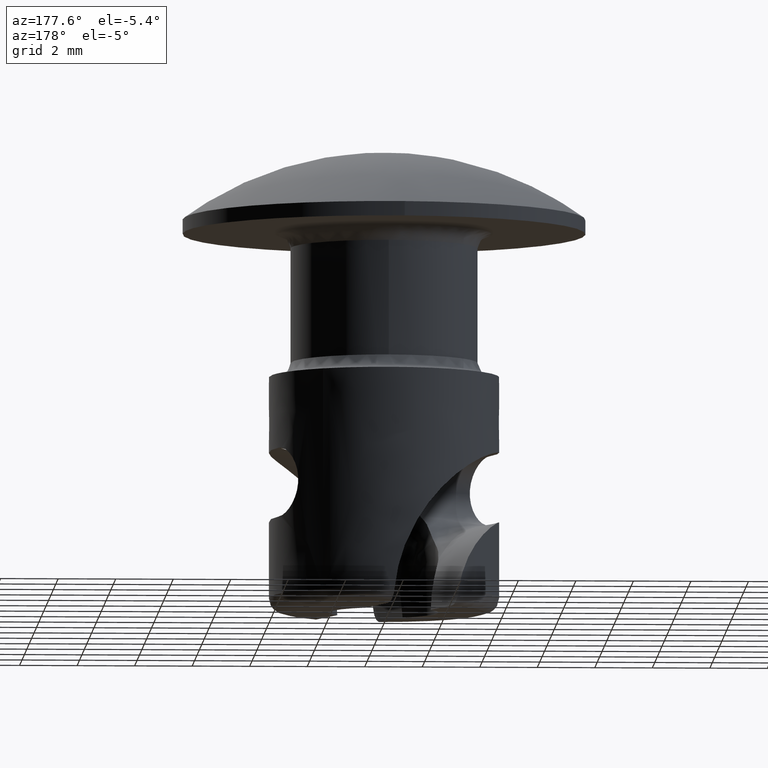
[diagram: clean part render]
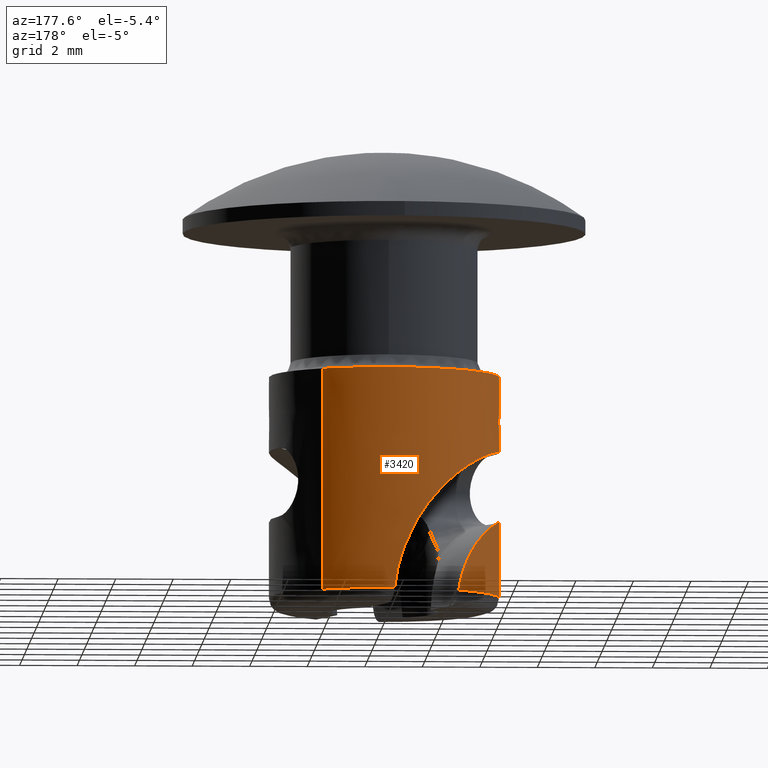
[diagram: same view with one face highlighted and labeled with its STEP entity id]
A machine part, auxiliary view. The second image highlights one B-rep face of the part: STEP entity #3420.
In plain terms, the highlighted face is a freeform B-spline surface patch.
Its self-contained STEP definition (entity closure, byte-faithful):
#893=CARTESIAN_POINT('',(2.259197574240169,3.300912952585230,-4.999992000000231));
#894=VERTEX_POINT('',#893);
#908=CARTESIAN_POINT('',(-4.0,0.0,-4.999992000000230));
#909=VERTEX_POINT('',#908);
#910=CARTESIAN_POINT('',(2.259197574240169,3.300912952585230,-4.999992000000231));
#911=CARTESIAN_POINT('',(1.237761682086624,3.999999999999773,-4.999992000000231));
#912=CARTESIAN_POINT('',(-1.292140E-013,3.999999999999811,-4.999992000000230));
#913=CARTESIAN_POINT('',(-4.000000000000044,3.999999999999935,-4.999992000000230));
#914=CARTESIAN_POINT('',(-4.0,0.0,-4.999992000000230));
#922=(BOUNDED_CURVE()B_SPLINE_CURVE(2,(#910,#911,#912,#913,#914),.UNSPECIFIED.,.F.,.U.)B_SPLINE_CURVE_WITH_KNOTS((3,2,3),(0.153025890299699,0.250000000000000,0.500000000000000),.UNSPECIFIED.)CURVE()GEOMETRIC_REPRESENTATION_ITEM()RATIONAL_B_SPLINE_CURVE((0.860915090852421,0.886387763473240,1.0,0.707106781186548,1.0))REPRESENTATION_ITEM(''));
#923=EDGE_CURVE('',#894,#909,#922,.T.);
#925=CARTESIAN_POINT('',(-2.259197574405651,-3.300912952471971,-4.999992000000231));
#926=VERTEX_POINT('',#925);
#927=CARTESIAN_POINT('',(-4.0,0.0,-4.999992000000230));
#928=CARTESIAN_POINT('',(-3.999999999999916,-2.109479953768916,-4.999992000000231));
#929=CARTESIAN_POINT('',(-2.259197574405651,-3.300912952471971,-4.999992000000231));
#937=(BOUNDED_CURVE()B_SPLINE_CURVE(2,(#927,#928,#929),.UNSPECIFIED.,.F.,.U.)B_SPLINE_CURVE_WITH_KNOTS((3,3),(0.500000000000000,0.653025890292069),.UNSPECIFIED.)CURVE()GEOMETRIC_REPRESENTATION_ITEM()RATIONAL_B_SPLINE_CURVE((1.0,0.820719017722246,0.860915090848412))REPRESENTATION_ITEM(''));
#938=EDGE_CURVE('',#909,#926,#937,.T.);
#1164=CARTESIAN_POINT('',(-3.708735643717875,-1.498425815653404,-7.600000000000000));
#1165=VERTEX_POINT('',#1164);
#1586=CARTESIAN_POINT('',(-3.708735643717195,-1.498425815655100,-10.0));
#1587=VERTEX_POINT('',#1586);
#1786=CARTESIAN_POINT('',(-0.205768854712651,3.994703891207740,-12.699992000000160));
#1787=VERTEX_POINT('',#1786);
#1788=CARTESIAN_POINT('',(-3.708735643717875,-1.498425815653404,-7.600000000000000));
#1789=CARTESIAN_POINT('',(-3.789807041691146,-1.297766977418964,-7.599999999999967));
#1790=CARTESIAN_POINT('',(-3.853596471551973,-1.093309977378175,-7.600772718924984));
#1791=CARTESIAN_POINT('',(-3.948041825137527,-0.677124965687440,-7.604735402965179));
#1792=CARTESIAN_POINT('',(-3.978695676687689,-0.465396398029507,-7.607916854592961));
#1793=CARTESIAN_POINT('',(-3.995557353135945,-0.196047841707798,-7.615213210024270));
#1794=CARTESIAN_POINT('',(-3.997842840035318,-0.141954885063793,-7.616844880518100));
#1795=CARTESIAN_POINT('',(-4.000215215483697,-0.034304414116106,-7.620481453126770));
#1796=CARTESIAN_POINT('',(-4.000311501833706,0.019379054371342,-7.622489527418434));
#1797=CARTESIAN_POINT('',(-3.997382795663326,0.180003952012950,-7.629172316316781));
#1798=CARTESIAN_POINT('',(-3.991144980023504,0.286520663379554,-7.634502335333308));
#1799=CARTESIAN_POINT('',(-3.959810891774866,0.604340193783497,-7.653941599800710));
#1800=CARTESIAN_POINT('',(-3.922165612591279,0.813926030801537,-7.671427053633487));
#1801=CARTESIAN_POINT('',(-3.853840926421872,1.072742411345297,-7.702605536291266));
#1802=CARTESIAN_POINT('',(-3.839063716241127,1.124479326207520,-7.709332878718137));
#1803=CARTESIAN_POINT('',(-3.807606104284335,1.226784303389935,-7.723726561811621));
#1804=CARTESIAN_POINT('',(-3.757569494926593,1.378546253538888,-7.746723973655144));
#1805=CARTESIAN_POINT('',(-3.699254502020070,1.525269825644304,-7.774274513035329));
#1806=CARTESIAN_POINT('',(-3.572152022832992,1.812031338778992,-7.836415390966361));
#1807=CARTESIAN_POINT('',(-3.473487541862998,1.994320039496119,-7.887177834026945));
#1808=CARTESIAN_POINT('',(-3.333971508136851,2.210720638308926,-7.966138198702014));
#1809=CARTESIAN_POINT('',(-3.305180656646301,2.253531803785282,-7.982754566265484));
#1810=CARTESIAN_POINT('',(-3.246378912532125,2.337444912721444,-8.017432844738268));
#1811=CARTESIAN_POINT('',(-3.156528372275530,2.460519944637448,-8.071505534014388));
#1812=CARTESIAN_POINT('',(-3.062121861641995,2.575450326921853,-8.131925215521200));
#1813=CARTESIAN_POINT('',(-2.868151904439571,2.794967509830934,-8.261735731642588));
#1814=CARTESIAN_POINT('',(-2.731974575040376,2.927544594711210,-8.360217103798947));
#1815=CARTESIAN_POINT('',(-2.555858173822876,3.077292096526748,-8.500168364770465));
#1816=CARTESIAN_POINT('',(-2.520374591309018,3.106405435249388,-8.528978069221800));
#1817=CARTESIAN_POINT('',(-2.449539266845513,3.162562282208051,-8.587774580366899));
#1818=CARTESIAN_POINT('',(-2.343244714092557,3.243897190554972,-8.677923318479957));
#1819=CARTESIAN_POINT('',(-2.237116414107578,3.316976403250024,-8.773933916638111));
#1820=CARTESIAN_POINT('',(-2.096234506022459,3.407759264641178,-8.907189074940703));
#1821=CARTESIAN_POINT('',(-2.026104033602165,3.449821630201876,-8.976437065082797));
#1822=CARTESIAN_POINT('',(-1.921710066072550,3.508364594900644,-9.084288762194099));
#1823=CARTESIAN_POINT('',(-1.887045565961859,3.527119872789734,-9.120902893757121));
#1824=CARTESIAN_POINT('',(-1.818038765337956,3.563179845695840,-9.195470008098951));
#1825=CARTESIAN_POINT('',(-1.783632491396543,3.580514889640178,-9.233496409936555));
#1826=CARTESIAN_POINT('',(-1.613498800480899,3.663267591871199,-9.425921725053115));
#1827=CARTESIAN_POINT('',(-1.483451415774570,3.717058042193894,-9.587114124151178));
#1828=CARTESIAN_POINT('',(-1.237156235664457,3.806125725794989,-9.923631486977360));
#1829=CARTESIAN_POINT('',(-1.120898620844221,3.841371365013050,-10.098957333073990));
#1830=CARTESIAN_POINT('',(-0.958346260560988,3.883903882101996,-10.372711952529770));
#1831=CARTESIAN_POINT('',(-0.906137857608259,3.896349923786902,-10.465762301722190));
#1832=CARTESIAN_POINT('',(-0.805974933340986,3.918294648493278,-10.655545242903109));
#1833=CARTESIAN_POINT('',(-0.758352362388712,3.927720430212645,-10.751664084369191));
#1834=CARTESIAN_POINT('',(-0.623528285219922,3.952158500279568,-11.042651236670331));
#1835=CARTESIAN_POINT('',(-0.544112701687553,3.963418444699922,-11.240586997862421));
#1836=CARTESIAN_POINT('',(-0.407331227179308,3.979802215096861,-11.644543489215280));
#1837=CARTESIAN_POINT('',(-0.349963716141960,3.984921830649420,-11.850563859237459));
#1838=CARTESIAN_POINT('',(-0.281807522310892,3.990125771215682,-12.166030339860731));
#1839=CARTESIAN_POINT('',(-0.262078740228748,3.991439283654654,-12.272341897581819));
#1840=CARTESIAN_POINT('',(-0.229106466022498,3.993467546933132,-12.485477538500669));
#1841=CARTESIAN_POINT('',(-0.215813429756175,3.994186490980071,-12.592502607798790));
#1842=CARTESIAN_POINT('',(-0.205768854712640,3.994703891207740,-12.699992000000160));
#1843=B_SPLINE_CURVE_WITH_KNOTS('',3,(#1788,#1789,#1790,#1791,#1792,#1793,#1794,#1795,#1796,#1797,#1798,#1799,#1800,#1801,#1802,#1803,#1804,#1805,#1806,#1807,#1808,#1809,#1810,#1811,#1812,#1813,#1814,#1815,#1816,#1817,#1818,#1819,#1820,#1821,#1822,#1823,#1824,#1825,#1826,#1827,#1828,#1829,#1830,#1831,#1832,#1833,#1834,#1835,#1836,#1837,#1838,#1839,#1840,#1841,#1842),.UNSPECIFIED.,.F.,.U.,(4,2,2,2,2,2,2,2,1,2,2,2,1,2,2,2,1,2,2,2,2,2,2,2,2,2,2,2,4),(0.0,0.062500000000000,0.125000000000001,0.140625000000001,0.156250000000001,0.187500000000001,0.250000000000001,0.265625000000001,0.281250000000002,0.312500000000002,0.375000000000002,0.390625000000002,0.406250000000002,0.437500000000002,0.500000000000001,0.515625000000001,0.531250000000001,0.562500000000001,0.593750000000000,0.609375000000000,0.625000000000000,0.687499999999999,0.749999999999999,0.781249999999999,0.812499999999999,0.874999999999999,0.937500000000000,0.968750000000000,1.0),.UNSPECIFIED.);
#1844=EDGE_CURVE('',#1165,#1787,#1843,.T.);
#2427=CARTESIAN_POINT('',(-3.708735643717195,-1.498425815655100,-10.0));
#2428=CARTESIAN_POINT('',(-3.679102189223766,-1.571771221061438,-9.999999999995962));
#2429=CARTESIAN_POINT('',(-3.647627583659147,-1.643415829732492,-9.992253736317078));
#2430=CARTESIAN_POINT('',(-3.597846414992063,-1.748428385365266,-9.969119832469167));
#2431=CARTESIAN_POINT('',(-3.580727194656991,-1.783209866119954,-9.959406232334883));
#2432=CARTESIAN_POINT('',(-3.546194854705972,-1.850931311972832,-9.936325284477940));
#2433=CARTESIAN_POINT('',(-3.528822626520698,-1.883808763369808,-9.923008563218884));
#2434=CARTESIAN_POINT('',(-3.476529809504993,-1.979656240156726,-9.877894745435084));
#2435=CARTESIAN_POINT('',(-3.441422436012597,-2.039862738677053,-9.840986417194559));
#2436=CARTESIAN_POINT('',(-3.371664358349680,-2.153208728938017,-9.753100008384974));
#2437=CARTESIAN_POINT('',(-3.338125821954172,-2.204560077148388,-9.703511626598468));
#2438=CARTESIAN_POINT('',(-3.290603741679167,-2.274361294848793,-9.620984216887340));
#2439=CARTESIAN_POINT('',(-3.275228753205649,-2.296417054312438,-9.592104484314882));
#2440=CARTESIAN_POINT('',(-3.245583210042875,-2.338128375401096,-9.531520028104190));
#2441=CARTESIAN_POINT('',(-3.231296064316658,-2.357802105201902,-9.499739655819592));
#2442=CARTESIAN_POINT('',(-3.191251705717659,-2.412039104348093,-9.402138996591740));
#2443=CARTESIAN_POINT('',(-3.167959553486397,-2.442337980794396,-9.333461515882400));
#2444=CARTESIAN_POINT('',(-3.138960841511834,-2.479348799936589,-9.224909215741585));
#2445=CARTESIAN_POINT('',(-3.130265571418596,-2.490297795865220,-9.187673365036490));
#2446=CARTESIAN_POINT('',(-3.115181070894091,-2.509141796561330,-9.111777814586327));
#2447=CARTESIAN_POINT('',(-3.108860624840467,-2.516952641354830,-9.073503060591065));
#2448=CARTESIAN_POINT('',(-3.093605507198245,-2.535717827287515,-8.957714580034462));
#2449=CARTESIAN_POINT('',(-3.088355791737048,-2.542057927207386,-8.879216207163276));
#2450=CARTESIAN_POINT('',(-3.088405530332516,-2.541997498397622,-8.719660757297724));
#2451=CARTESIAN_POINT('',(-3.093699749007585,-2.535602924972343,-8.641314035072519));
#2452=CARTESIAN_POINT('',(-3.108965736497678,-2.516822824896141,-8.525829093263262));
#2453=CARTESIAN_POINT('',(-3.115280585311296,-2.509018098867547,-8.487675685665277));
#2454=CARTESIAN_POINT('',(-3.130327457372088,-2.490219860833312,-8.412061565552939));
#2455=CARTESIAN_POINT('',(-3.139073773109755,-2.479206167438235,-8.374621247898364));
#2456=CARTESIAN_POINT('',(-3.168172651768619,-2.442062968665946,-8.265835438195643));
#2457=CARTESIAN_POINT('',(-3.191522263812011,-2.411681838382053,-8.197115238746823));
#2458=CARTESIAN_POINT('',(-3.231595270381205,-2.357392186517232,-8.099574956171024));
#2459=CARTESIAN_POINT('',(-3.245882471444463,-2.337713219615243,-8.067832932309816));
#2460=CARTESIAN_POINT('',(-3.275555016134975,-2.295951970722407,-8.007264972069882));
#2461=CARTESIAN_POINT('',(-3.290938502689932,-2.273877015792635,-7.978403733941685));
#2462=CARTESIAN_POINT('',(-3.338468913277981,-2.204041052343006,-7.895954947146954));
#2463=CARTESIAN_POINT('',(-3.371982996198901,-2.152707910233016,-7.846458983159992));
#2464=CARTESIAN_POINT('',(-3.441665216082182,-2.039451204080856,-7.758747595275216));
#2465=CARTESIAN_POINT('',(-3.476827485148711,-1.979127252197908,-7.721821598279784));
#2466=CARTESIAN_POINT('',(-3.528989714817064,-1.883494120839449,-7.676860832880263));
#2467=CARTESIAN_POINT('',(-3.546302402599304,-1.850721884976314,-7.663600701630447));
#2468=CARTESIAN_POINT('',(-3.580684502784268,-1.783292101064655,-7.640624436650119));
#2469=CARTESIAN_POINT('',(-3.597844094765264,-1.748435731230897,-7.630878000812713));
#2470=CARTESIAN_POINT('',(-3.647771333689996,-1.643107678416085,-7.607685964771421));
#2471=CARTESIAN_POINT('',(-3.679217924304726,-1.571484766568677,-7.599999999993237));
#2472=CARTESIAN_POINT('',(-3.708735643717875,-1.498425815653404,-7.600000000000000));
#2473=B_SPLINE_CURVE_WITH_KNOTS('',3,(#2427,#2428,#2429,#2430,#2431,#2432,#2433,#2434,#2435,#2436,#2437,#2438,#2439,#2440,#2441,#2442,#2443,#2444,#2445,#2446,#2447,#2448,#2449,#2450,#2451,#2452,#2453,#2454,#2455,#2456,#2457,#2458,#2459,#2460,#2461,#2462,#2463,#2464,#2465,#2466,#2467,#2468,#2469,#2470,#2471,#2472),.UNSPECIFIED.,.F.,.U.,(4,2,2,2,2,2,2,2,2,2,2,2,2,2,2,2,2,2,2,2,2,2,4),(0.0,0.062500000000001,0.093750000000001,0.125000000000001,0.187500000000001,0.250000000000001,0.281250000000001,0.312500000000000,0.374999999999999,0.406249999999999,0.437499999999998,0.499999999999998,0.562499999999999,0.593749999999998,0.624999999999998,0.687499999999998,0.718749999999998,0.749999999999999,0.812499999999999,0.875000000000000,0.906250000000000,0.937500000000000,1.0),.UNSPECIFIED.);
#2474=EDGE_CURVE('',#1587,#1165,#2473,.T.);
#2936=CARTESIAN_POINT('',(2.259198848327368,3.300912080579591,-12.699992000000160));
#2937=VERTEX_POINT('',#2936);
#2938=CARTESIAN_POINT('',(2.259198848327369,3.300912080579591,-12.699992000000160));
#2939=CARTESIAN_POINT('',(1.143920618131550,4.064226955897497,-12.699992000000156));
#2940=CARTESIAN_POINT('',(-0.205768854712650,3.994703891207738,-12.699992000000160));
#2948=(BOUNDED_CURVE()B_SPLINE_CURVE(2,(#2938,#2939,#2940),.UNSPECIFIED.,.F.,.U.)B_SPLINE_CURVE_WITH_KNOTS((3,3),(0.742473774957260,1.0),.UNSPECIFIED.)CURVE()GEOMETRIC_REPRESENTATION_ITEM()RATIONAL_B_SPLINE_CURVE((0.903519857592043,0.900525178006402,1.0))REPRESENTATION_ITEM(''));
#2949=EDGE_CURVE('',#2937,#1787,#2948,.T.);
#3241=CARTESIAN_POINT('',(-2.259198863893974,-3.300912069925549,-12.699992000000160));
#3242=VERTEX_POINT('',#3241);
#3243=CARTESIAN_POINT('',(-2.259198863893974,-3.300912069925549,-12.699992000000160));
#3244=CARTESIAN_POINT('',(-2.259197574405651,-3.300912952471971,-4.999992000000231));
#3245=QUASI_UNIFORM_CURVE('',1,(#3243,#3244),.UNSPECIFIED.,.F.,.U.);
#3246=EDGE_CURVE('',#3242,#926,#3245,.T.);
#3324=CARTESIAN_POINT('',(2.259198848327368,3.300912080579591,-12.699992000000160));
#3325=CARTESIAN_POINT('',(2.259197574240169,3.300912952585230,-4.999992000000231));
#3326=QUASI_UNIFORM_CURVE('',1,(#3324,#3325),.UNSPECIFIED.,.F.,.U.);
#3327=EDGE_CURVE('',#2937,#894,#3326,.T.);
#3333=CARTESIAN_POINT('',(2.259198850649106,3.300912078990555,-12.892492000000161));
#3334=CARTESIAN_POINT('',(-1.041713228341449,5.560110929639662,-12.892492000000159));
#3335=CARTESIAN_POINT('',(-3.300912078990555,2.259198850649106,-12.892492000000161));
#3336=CARTESIAN_POINT('',(-5.560110929639662,-1.041713228341449,-12.892492000000159));
#3337=CARTESIAN_POINT('',(-2.259198850649106,-3.300912078990555,-12.892492000000161));
#3338=CARTESIAN_POINT('',(2.259198850649106,3.300912078990555,-4.802679500000230));
#3339=CARTESIAN_POINT('',(-1.041713228341449,5.560110929639662,-4.802679500000229));
#3340=CARTESIAN_POINT('',(-3.300912078990555,2.259198850649106,-4.802679500000230));
#3341=CARTESIAN_POINT('',(-5.560110929639662,-1.041713228341449,-4.802679500000229));
#3342=CARTESIAN_POINT('',(-2.259198850649106,-3.300912078990555,-4.802679500000230));
#3350=(BOUNDED_SURFACE()B_SPLINE_SURFACE(2,1,((#3333,#3338),(#3334,#3339),(#3335,#3340),(#3336,#3341),(#3337,#3342)),.UNSPECIFIED.,.F.,.F.,.U.)B_SPLINE_SURFACE_WITH_KNOTS((3,2,3),(2,2),(0.0,6.627416997969519,13.254833995939039),(0.0,8.089812499999930),.UNSPECIFIED.)GEOMETRIC_REPRESENTATION_ITEM()RATIONAL_B_SPLINE_SURFACE(((1.0,1.0),(0.707106781186548,0.707106781186548),(1.0,1.0),(0.707106781186548,0.707106781186548),(1.0,1.0)))REPRESENTATION_ITEM('')SURFACE());
#3351=ORIENTED_EDGE('',*,*,#938,.F.);
#3352=ORIENTED_EDGE('',*,*,#923,.F.);
#3353=ORIENTED_EDGE('',*,*,#3327,.F.);
#3354=ORIENTED_EDGE('',*,*,#2949,.T.);
#3355=ORIENTED_EDGE('',*,*,#1844,.F.);
#3356=ORIENTED_EDGE('',*,*,#2474,.F.);
#3357=CARTESIAN_POINT('',(-2.468781606039290,3.147239644781135,-12.699992000000160));
#3358=VERTEX_POINT('',#3357);
#3359=CARTESIAN_POINT('',(-3.708735643717195,-1.498425815655100,-10.0));
#3360=CARTESIAN_POINT('',(-3.810066701757388,-1.247622537412424,-9.999999999999931));
#3361=CARTESIAN_POINT('',(-3.884498252109439,-0.990896148603339,-10.001988224397540));
#3362=CARTESIAN_POINT('',(-3.957396958870353,-0.597335560563113,-10.010848034188930));
#3363=CARTESIAN_POINT('',(-3.975188372066427,-0.464727053433584,-10.014844201020180));
#3364=CARTESIAN_POINT('',(-3.991868400148785,-0.263647743769754,-10.023397362223470));
#3365=CARTESIAN_POINT('',(-3.995758904488227,-0.196059816966025,-10.026692473369760));
#3366=CARTESIAN_POINT('',(-4.000092705989775,-0.061538752937587,-10.034291927543480));
#3367=CARTESIAN_POINT('',(-4.000553191496783,0.005465752210790,-10.038596460785000));
#3368=CARTESIAN_POINT('',(-3.994528402096312,0.339166985308147,-10.063157607255810));
#3369=CARTESIAN_POINT('',(-3.963232839493227,0.601964508182015,-10.092167329923850));
#3370=CARTESIAN_POINT('',(-3.892379125323124,0.923976857297070,-10.151600530435321));
#3371=CARTESIAN_POINT('',(-3.876611575912244,0.988050860871334,-10.164670497701810));
#3372=CARTESIAN_POINT('',(-3.841879980453220,1.115490936744072,-10.193582393500170));
#3373=CARTESIAN_POINT('',(-3.822948935523379,1.178686127611991,-10.209399120592220));
#3374=CARTESIAN_POINT('',(-3.762366253236705,1.364389380156086,-10.260827271987560));
#3375=CARTESIAN_POINT('',(-3.716698636142954,1.483881558519764,-10.300592687808409));
#3376=CARTESIAN_POINT('',(-3.616356298214428,1.713977933343011,-10.393444244517600));
#3377=CARTESIAN_POINT('',(-3.561675233657941,1.824582761202875,-10.446521933388730));
#3378=CARTESIAN_POINT('',(-3.474102317600333,1.983499752325898,-10.538262202352520));
#3379=CARTESIAN_POINT('',(-3.444180133449308,2.034941375174011,-10.570675664425851));
#3380=CARTESIAN_POINT('',(-3.383738695694265,2.133934308103992,-10.638726136830890));
#3381=CARTESIAN_POINT('',(-3.353137988980373,2.181634283094741,-10.674447556419990));
#3382=CARTESIAN_POINT('',(-3.260681468525003,2.319527200549334,-10.786873433659000));
#3383=CARTESIAN_POINT('',(-3.198169871319094,2.404521150401735,-10.868829563858061));
#3384=CARTESIAN_POINT('',(-3.105000316457967,2.522196692752479,-11.003097109356039));
#3385=CARTESIAN_POINT('',(-3.074043397893057,2.559784019115129,-11.049743986256260));
#3386=CARTESIAN_POINT('',(-3.012656922949932,2.631755175020836,-11.146993368141970));
#3387=CARTESIAN_POINT('',(-2.982529955891713,2.665783474074615,-11.197126459747061));
#3388=CARTESIAN_POINT('',(-2.894647139723892,2.761985483352743,-11.351308839891271));
#3389=CARTESIAN_POINT('',(-2.839205992474519,2.818517196570666,-11.459419833557281));
#3390=CARTESIAN_POINT('',(-2.762163748026127,2.893394873303194,-11.629511696151040));
#3391=CARTESIAN_POINT('',(-2.737502306013567,2.916694455607914,-11.687532737467601));
#3392=CARTESIAN_POINT('',(-2.690454913071278,2.960148270532097,-11.806251024790409));
#3393=CARTESIAN_POINT('',(-2.667999576647057,2.980362334449977,-11.867166616970010));
#3394=CARTESIAN_POINT('',(-2.605128592468133,3.035857466860550,-12.051846206992650));
#3395=CARTESIAN_POINT('',(-2.569067445048843,3.066167797730091,-12.177730043598640));
#3396=CARTESIAN_POINT('',(-2.509366243443456,3.115216454327575,-12.434834000225941));
#3397=CARTESIAN_POINT('',(-2.485721187855513,3.133951769461173,-12.566053523677420));
#3398=CARTESIAN_POINT('',(-2.468781606039275,3.147239644781145,-12.699992000000140));
#3399=B_SPLINE_CURVE_WITH_KNOTS('',3,(#3359,#3360,#3361,#3362,#3363,#3364,#3365,#3366,#3367,#3368,#3369,#3370,#3371,#3372,#3373,#3374,#3375,#3376,#3377,#3378,#3379,#3380,#3381,#3382,#3383,#3384,#3385,#3386,#3387,#3388,#3389,#3390,#3391,#3392,#3393,#3394,#3395,#3396,#3397,#3398),.UNSPECIFIED.,.F.,.U.,(4,2,2,2,2,2,2,2,2,2,2,2,2,2,2,2,2,2,2,4),(0.0,0.125000000000000,0.187500000000001,0.218750000000001,0.250000000000001,0.375000000000001,0.406250000000001,0.437500000000001,0.500000000000001,0.562500000000001,0.593750000000000,0.625000000000000,0.687500000000000,0.718750000000000,0.750000000000000,0.812500000000000,0.843749999999999,0.874999999999999,0.937500000000000,1.0),.UNSPECIFIED.);
#3400=EDGE_CURVE('',#1587,#3358,#3399,.T.);
#3401=ORIENTED_EDGE('',*,*,#3400,.T.);
#3402=CARTESIAN_POINT('',(-2.468781606039288,3.147239644781133,-12.699992000000160));
#3403=CARTESIAN_POINT('',(-4.772995447202776,1.339750737198706,-12.699992000000163));
#3404=CARTESIAN_POINT('',(-3.745950619800004,-1.402802179218427,-12.699992000000160));
#3405=CARTESIAN_POINT('',(-3.302552383284815,-2.586823649599729,-12.699992000000162));
#3406=CARTESIAN_POINT('',(-2.259198863893975,-3.300912069925549,-12.699992000000162));
#3414=(BOUNDED_CURVE()B_SPLINE_CURVE(2,(#3402,#3403,#3404,#3405,#3406),.UNSPECIFIED.,.F.,.U.)B_SPLINE_CURVE_WITH_KNOTS((3,2,3),(0.0,0.500000000000000,0.742473773154059),.UNSPECIFIED.)CURVE()GEOMETRIC_REPRESENTATION_ITEM()RATIONAL_B_SPLINE_CURVE((1.0,0.806864675671208,1.0,0.906339498361330,0.903519857633981))REPRESENTATION_ITEM(''));
#3415=EDGE_CURVE('',#3358,#3242,#3414,.T.);
#3416=ORIENTED_EDGE('',*,*,#3415,.T.);
#3417=ORIENTED_EDGE('',*,*,#3246,.T.);
#3418=EDGE_LOOP('',(#3351,#3352,#3353,#3354,#3355,#3356,#3401,#3416,#3417));
#3419=FACE_OUTER_BOUND('',#3418,.T.);
#3420=ADVANCED_FACE('',(#3419),#3350,.T.);